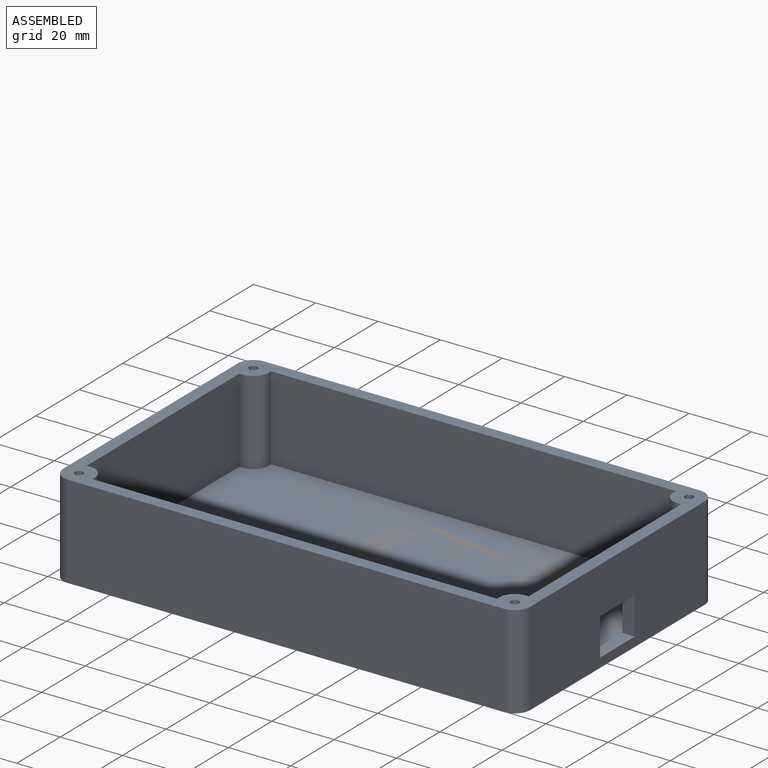
[diagram: assembled view]
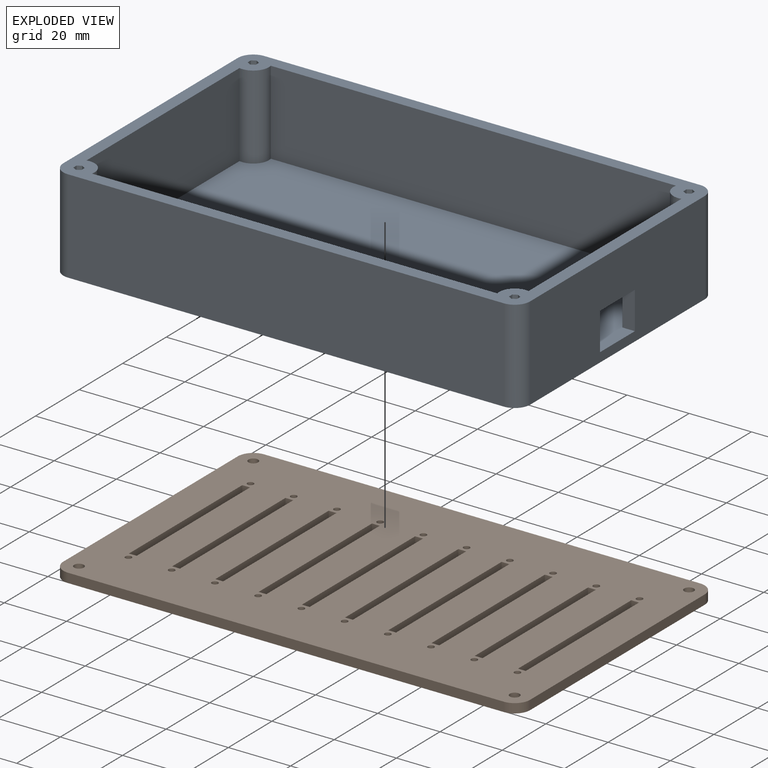
[diagram: exploded view]
GUIDED TOUR — FREECAD ASSEMBLY "mixer"

This assembly has 2 components, labeled P0..P1 below (a component is one placed body or linked part; the same part can appear more than once), held together by 0 modeled joints plus 1 derived contact edge. A joint is a constraint between two components; its type names the relative motion it leaves free:
  CONTACT — a derived adjacency edge — the two components touch in the source model (clearance under 2% of the assembly's diagonal); it is measured from the geometry, not a modeled constraint.
Axis/direction vectors are unit vectors and 'through' points are millimeter coordinates, both in the assembly's world frame.

MATES
  1. CONTACT "contact_0_1": P0 <-> P1, contact direction (0.000, 0.000, -1.000) through (-75.00, -40.00, 3.00) mm (derived from contact, not a modeled constraint)

ASSEMBLY ORDER
  1. P1 — the base component [order verified]
  2. P0 [order verified]
Order-tag legend:
  [order verified] — this step's position reverses a verified removal order: the component was checked to insert without passing through the ones already placed.

Of the 2 components, 2 carry a construction recipe — the FreeCAD feature program (sketches with constraints, then the solid features that consume them) that regenerates the part from scratch, quoted from this document or from the linked companion document it references; the rest are supplied as boundary geometry only. The tour below walks the components in assembly order: each is shown spotlighted twice — in the assembled view, then in the exploded view, where a leader line traces a displaced component back to its assembled socket (components that stay in place when exploded have no leader line; saturated green if recipe-attached, orange if geometry-only; every other component desaturated gray) — followed by its recipe or geometry summary and the mates that hold it.
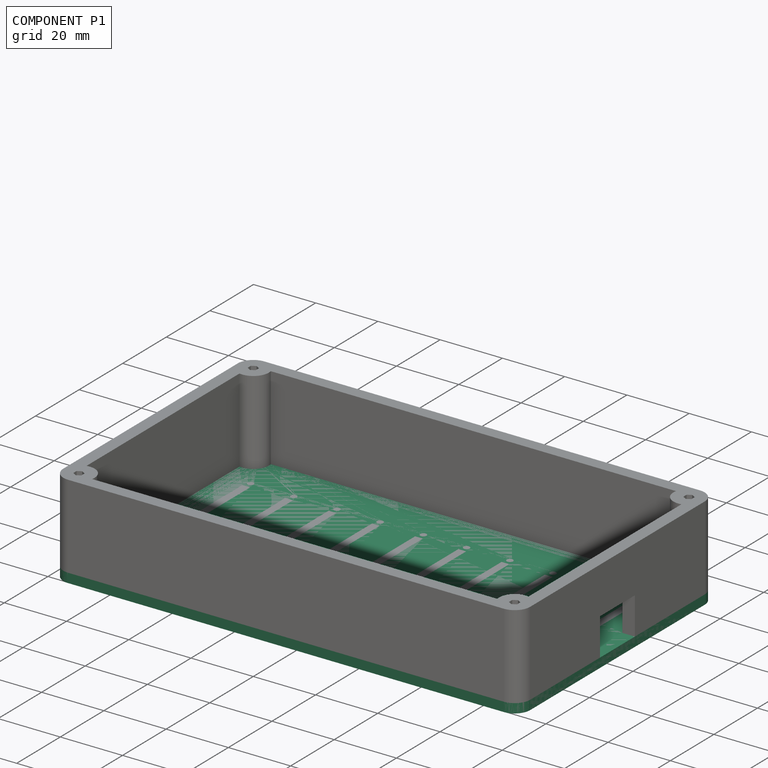
[diagram: component P1 — assembled]
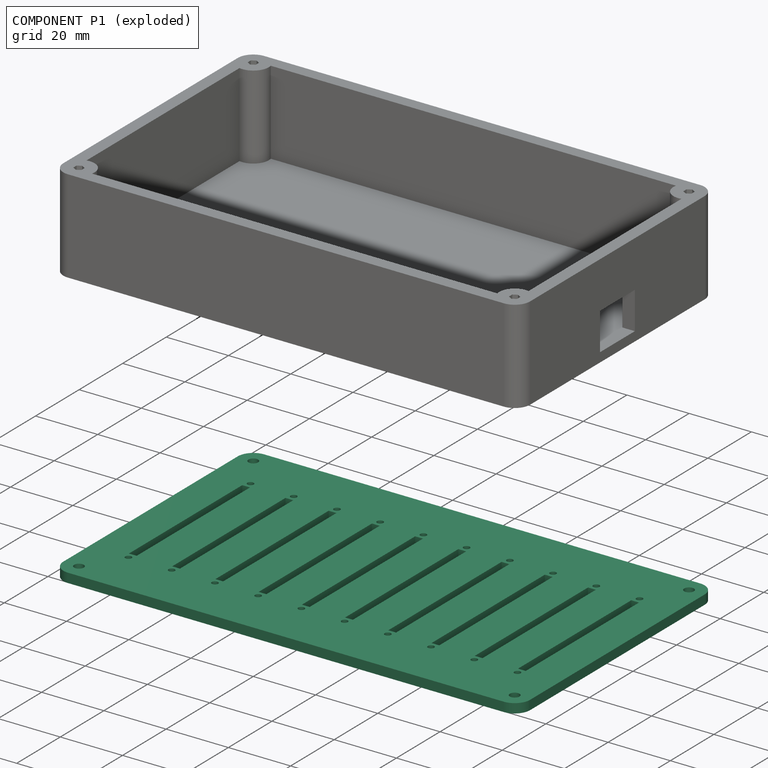
[diagram: component P1 — exploded]
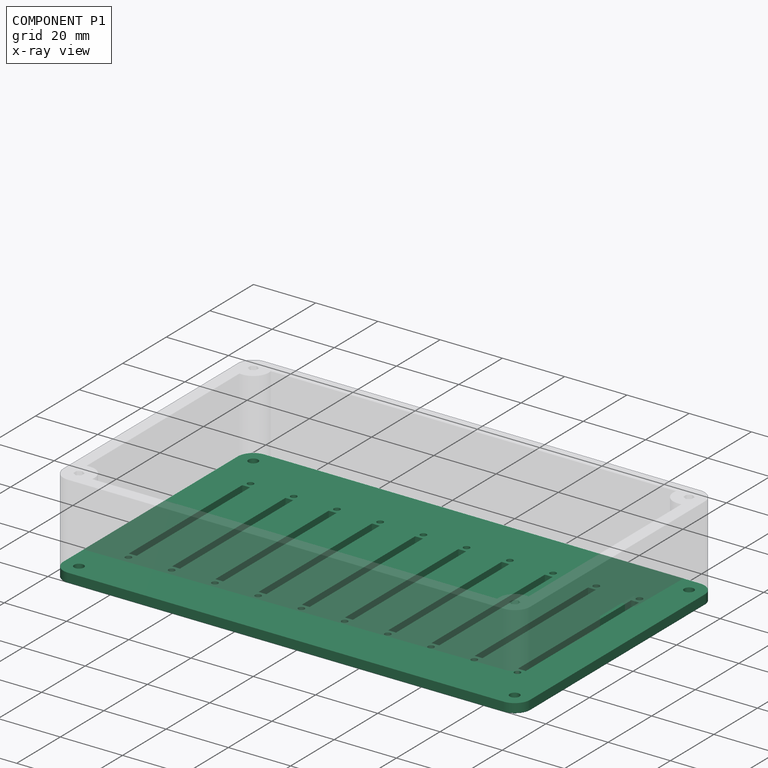
[diagram: component P1 — x-ray view]
COMPONENT P1 — recipe-attached ("TopPanel", modeled in this document).
Held by: resting contact with P0 (derived edge).
Construction recipe (the document's own serialized feature program — sketch geometry with constraints, then the solid features built on it; lengths are millimeters unless a unit is written):

FEATURE [PartDesign::CoordinateSystem] LCS_0  label="TopPanel_LCS"
  AttacherType = Attacher::AttachEngine3D
  MapMode = 2
  Support = -> [X_Axis001]
FEATURE [Sketcher::SketchObject] Sketch  label="TopPanel_Panel_S"
  FullyConstrained = true
  MapMode = 5
  Support = -> [XY_Plane001]
  sketch-geometry (8):
    g0: LineSegment StartX=-70 StartY=45 StartZ=0 EndX=70 EndY=45 EndZ=0
    g1: LineSegment StartX=75 StartY=40 StartZ=0 EndX=75 EndY=-40 EndZ=0
    g2: LineSegment StartX=70 StartY=-45 StartZ=0 EndX=-70 EndY=-45 EndZ=0
    g3: LineSegment StartX=-75 StartY=-40 StartZ=0 EndX=-75 EndY=40 EndZ=0
    g4: ArcOfCircle CenterX=-70 CenterY=40 CenterZ=0 NormalX=0 NormalY=0 NormalZ=1 AngleXU=0 Radius=5 StartAngle=1.5708 EndAngle=3.14159
    g5: ArcOfCircle CenterX=-70 CenterY=-40 CenterZ=0 NormalX=0 NormalY=0 NormalZ=1 AngleXU=0 Radius=5 StartAngle=3.14159 EndAngle=4.71239
    g6: ArcOfCircle CenterX=70 CenterY=-40 CenterZ=0 NormalX=0 NormalY=0 NormalZ=1 AngleXU=0 Radius=5 StartAngle=4.71239 EndAngle=6.28319
    g7: ArcOfCircle CenterX=70 CenterY=40 CenterZ=0 NormalX=0 NormalY=0 NormalZ=1 AngleXU=0 Radius=5 StartAngle=0 EndAngle=1.5708
  constraints (18):
    c: Horizontal(g2)
    c: Tangent(g0,g4) = 1.5708
    c: Tangent(g3,g4) = 1.5708
    c: Tangent(g3,g5) = 1.5708
    c: Tangent(g2,g5) = 1.5708
    c: Tangent(g1,g6) = 1.5708
    c: Tangent(g2,g6) = 1.5708
    c: Tangent(g0,g7) = 1.5708
    c: Tangent(g1,g7) = 1.5708
    c: Equal(g4,g5)
    c: Equal(g5,g7)
    c: Equal(g7,g6)
    c: Horizontal(g0)
    c: Radius(g4) = 5  'corner_radius'
    c: Symmetric(g3,g3,g-1)
    c: Symmetric(g3,g1,g-2)
    c: DistanceY(g2,g0) = 90  'depth'
    c: DistanceX(g3,g1) = 150  'width'
FEATURE [PartDesign::Pad] Pad  label="TopPanel_Panel"
  Direction = (1,1,1)
  Length = 3
  Length2 = 100
  Profile = -> Sketch
  Type = 0
FEATURE [Sketcher::SketchObject] Sketch002  label="TopPanel_FaderCutouts_S"
  AttachmentOffset = pos=(-62.5,0,0) rot=(0,0,1;0rad)
  FullyConstrained = true
  MapMode = 5
  Placement = pos=(-62.5,0,0) rot=(0,0,1;0rad)
  Support = -> [XY_Plane001]
  expr: .AttachmentOffset.Base.x = -<<Dimensions>>.fader_span / 2
  sketch-geometry (8):
    g0: LineSegment StartX=-1.25 StartY=26 StartZ=0 EndX=1.25 EndY=26 EndZ=0
    g1: LineSegment StartX=1.25 StartY=26 StartZ=0 EndX=1.25 EndY=-26 EndZ=0
    g2: LineSegment StartX=1.25 StartY=-26 StartZ=0 EndX=-1.25 EndY=-26 EndZ=0
    g3: LineSegment StartX=-1.25 StartY=-26 StartZ=0 EndX=-1.25 EndY=26 EndZ=0
    g4: Circle CenterX=0 CenterY=28 CenterZ=0 NormalX=0 NormalY=0 NormalZ=1 AngleXU=0 Radius=1
    g5: Circle CenterX=-1e-16 CenterY=-28 CenterZ=0 NormalX=0 NormalY=0 NormalZ=1 AngleXU=0 Radius=1
    g6: LineSegment StartX=0 StartY=28 StartZ=0 EndX=0 EndY=26 EndZ=0
    g7: LineSegment StartX=-1e-16 StartY=-28 StartZ=0 EndX=-1e-16 EndY=-26 EndZ=0
  constraints (20):
    c: Coincident(g0,g1)
    c: Coincident(g1,g2)
    c: Coincident(g2,g3)
    c: Coincident(g3,g0)
    c: Horizontal(g2)
    c: Vertical(g1)
    c: Equal(g4,g5)
    c: DistanceX(g0,g0) = 2.5  'cutout_width'
    c: DistanceY(g1,g1) = 52  'cutout_height'
    c: Diameter(g4) = 2  'mounting_hole_diameter'
    c: Vertical(g6)
    c: Vertical(g7)
    c: Coincident(g5,g7)
    c: Coincident(g4,g6)
    c: Symmetric(g0,g0,g6)
    c: Symmetric(g2,g1,g7)
    c: Equal(g6,g7)
    c: DistanceY(g6,g6) = 2  'mounting_hole_offset'
    c: Symmetric(g0,g2,g-1)
    c: Symmetric(g0,g0,g-2)
FEATURE [PartDesign::Pocket] Pocket  label="TopPanel_FaderCutout"
  BaseFeature = -> Pad
  Length = 0
  Length2 = 100
  Profile = -> Sketch002
  Reversed = true
  Type = 1
FEATURE [PartDesign::LinearPattern] LinearPattern  label="TopPanel_FaderCutouts"
  BaseFeature = -> Pocket
  Direction = -> Sketch002 [H_Axis]
  Length = 125
  Occurrences = 10
  Originals = -> [Pocket]
  expr: Length = <<Dimensions>>.fader_span
FEATURE [Sketcher::SketchObject] Sketch003  label="TopPanel_MountingHoles_S"
  FullyConstrained = true
  MapMode = 5
  Support = -> [XY_Plane001]
  expr: .Constraints.centres_y = Sketch.Constraints.depth - 10mm
  expr: .Constraints.centres_x = Sketch.Constraints.width - 10mm
  sketch-geometry (7):
    g0: LineSegment StartX=-70 StartY=2e-16 StartZ=0 EndX=70 EndY=-1e-16 EndZ=0
    g1: LineSegment StartX=-70 StartY=40 StartZ=0 EndX=-70 EndY=-40 EndZ=0
    g2: LineSegment StartX=70 StartY=40 StartZ=0 EndX=70 EndY=-40 EndZ=0
    g3: Circle CenterX=-70 CenterY=40 CenterZ=0 NormalX=0 NormalY=0 NormalZ=1 AngleXU=0 Radius=1.55
    g4: Circle CenterX=-70 CenterY=-40 CenterZ=0 NormalX=0 NormalY=0 NormalZ=1 AngleXU=0 Radius=1.55
    g5: Circle CenterX=70 CenterY=40 CenterZ=0 NormalX=0 NormalY=0 NormalZ=1 AngleXU=0 Radius=1.55
    g6: Circle CenterX=70 CenterY=-40 CenterZ=0 NormalX=0 NormalY=0 NormalZ=1 AngleXU=0 Radius=1.55
  constraints (17):
    c: Vertical(g1)
    c: Vertical(g2)
    c: Symmetric(g1,g1,g0)
    c: Symmetric(g2,g2,g0)
    c: DistanceX(g0,g0) = 140  'centres_x'
    c: Equal(g1,g2)
    c: DistanceY(g2,g2) = 80  'centres_y'
    c: Symmetric(g0,g0,g-2)
    c: PointOnObject(g-1,g0)
    c: Diameter(g3) = 3.1
    c: Equal(g3,g4)
    c: Equal(g4,g5)
    c: Equal(g5,g6)
    c: Coincident(g3,g1)
    c: Coincident(g4,g1)
    c: Coincident(g2,g5)
    c: Coincident(g2,g6)
FEATURE [PartDesign::Pocket] Pocket001  label="TopPanel_MoutingHoles"
  BaseFeature = -> LinearPattern
  Length = 0
  Length2 = 100
  Profile = -> Sketch003
  Reversed = true
  Type = 1
FEATURE [PartDesign::Body] TopPanel
  Group = -> [LCS_0,Sketch,Pad,Sketch002,Pocket,LinearPattern,Sketch003,Pocket001]
  Origin = -> Origin001
  Tip = -> Pocket001
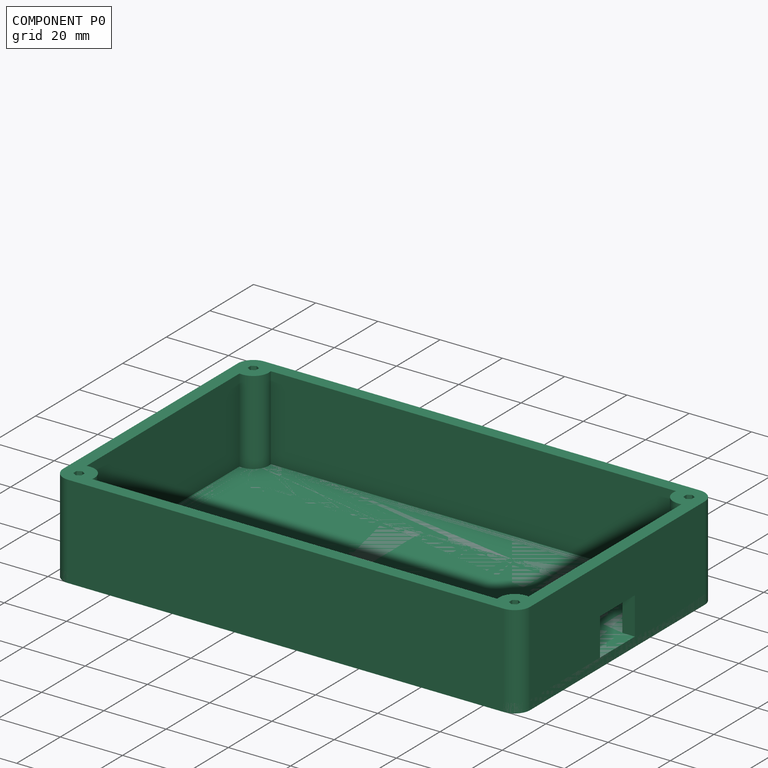
[diagram: component P0 — assembled]
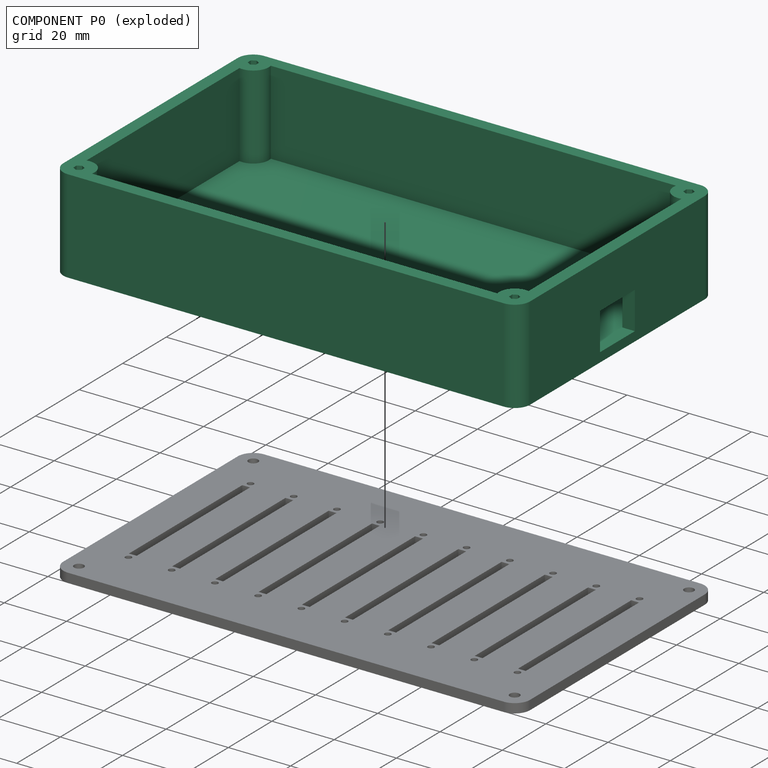
[diagram: component P0 — exploded]
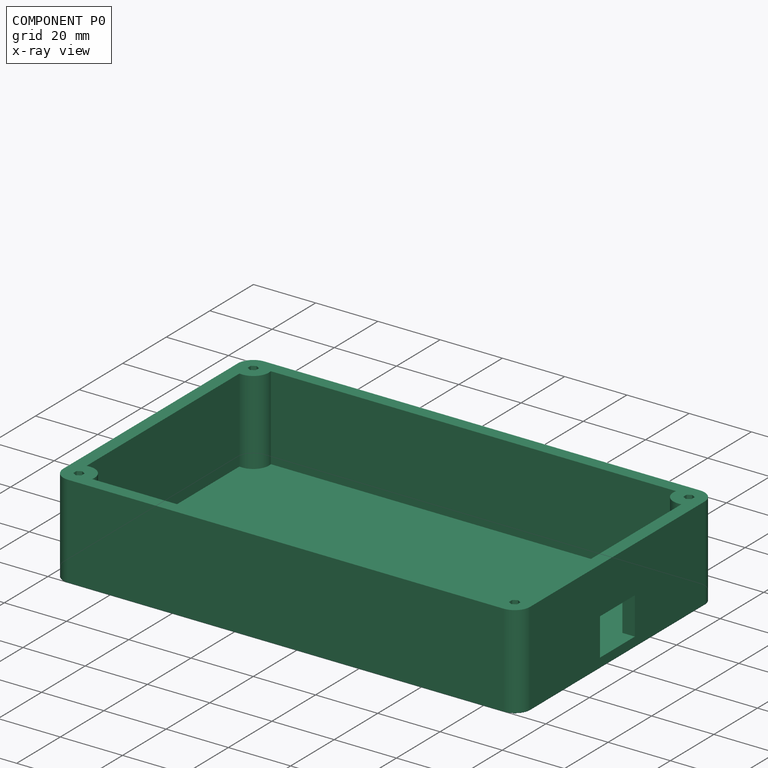
[diagram: component P0 — x-ray view]
COMPONENT P0 — recipe-attached ("Case", modeled in this document).
Held by: resting contact with P1 (derived edge).
Construction recipe (the document's own serialized feature program — sketch geometry with constraints, then the solid features built on it; lengths are millimeters unless a unit is written):

FEATURE [PartDesign::CoordinateSystem] LCS_0001  label="Case_LCS"
  AttacherType = Attacher::AttachEngine3D
  MapMode = 2
  Support = -> [X_Axis002]
FEATURE [Sketcher::SketchObject] Sketch004  label="Case_Body_S"
  FullyConstrained = true
  MapMode = 5
  Support = -> [XY_Plane002]
  expr: Constraints[13] = Sketch.Constraints.corner_radius
  expr: .Constraints.depth = Sketch.Constraints[16]
  expr: .Constraints.width = Sketch.Constraints[17]
  sketch-geometry (8):
    g0: LineSegment StartX=-70 StartY=45 StartZ=0 EndX=70 EndY=45 EndZ=0
    g1: LineSegment StartX=75 StartY=40 StartZ=0 EndX=75 EndY=-40 EndZ=0
    g2: LineSegment StartX=70 StartY=-45 StartZ=0 EndX=-70 EndY=-45 EndZ=0
    g3: LineSegment StartX=-75 StartY=-40 StartZ=0 EndX=-75 EndY=40 EndZ=0
    g4: ArcOfCircle CenterX=-70 CenterY=40 CenterZ=0 NormalX=0 NormalY=0 NormalZ=1 AngleXU=0 Radius=5 StartAngle=1.5708 EndAngle=3.14159
    g5: ArcOfCircle CenterX=-70 CenterY=-40 CenterZ=0 NormalX=0 NormalY=0 NormalZ=1 AngleXU=0 Radius=5 StartAngle=3.14159 EndAngle=4.71239
    g6: ArcOfCircle CenterX=70 CenterY=-40 CenterZ=0 NormalX=0 NormalY=0 NormalZ=1 AngleXU=0 Radius=5 StartAngle=4.71239 EndAngle=6.28319
    g7: ArcOfCircle CenterX=70 CenterY=40 CenterZ=0 NormalX=0 NormalY=0 NormalZ=1 AngleXU=0 Radius=5 StartAngle=8e-16 EndAngle=1.5708
  constraints (18):
    c: Horizontal(g2)
    c: Tangent(g0,g4) = 1.5708
    c: Tangent(g3,g4) = 1.5708
    c: Tangent(g3,g5) = 1.5708
    c: Tangent(g2,g5) = 1.5708
    c: Tangent(g1,g6) = 1.5708
    c: Tangent(g2,g6) = 1.5708
    c: Tangent(g0,g7) = 1.5708
    c: Tangent(g1,g7) = 1.5708
    c: Equal(g4,g5)
    c: Equal(g5,g7)
    c: Equal(g7,g6)
    c: Horizontal(g0)
    c: Radius(g4) = 5
    c: Symmetric(g3,g3,g-1)
    c: Symmetric(g3,g1,g-2)
    c: DistanceY(g2,g0) = 90  'depth'
    c: DistanceX(g3,g1) = 150  'width'
FEATURE [PartDesign::Pad] Pad001  label="Case_Body"
  Direction = (1,1,1)
  Length = 30
  Length2 = 100
  Profile = -> Sketch004
  Type = 0
FEATURE [PartDesign::Plane] DatumPlane001  label="Case_BottomWall"
  AttachmentOffset = pos=(0,0,3) rot=(0,0,1;0rad)
  Length = 173.238
  MapMode = 5
  Placement = pos=(0,0,3) rot=(0,0,1;0rad)
  ResizeMode = 0
  Support = -> [XY_Plane002]
  Width = 113.238
FEATURE [Sketcher::SketchObject] Sketch005  label="Case_Internal_S"
  FullyConstrained = true
  MapMode = 5
  Placement = pos=(0,0,3) rot=(0,0,1;0rad)
  Support = -> [DatumPlane001]
  expr: .Constraints.width = <<TopPanel_Panel_S>>.Constraints.width - 8mm
  expr: .Constraints.depth = <<TopPanel_Panel_S>>.Constraints.depth - 8mm
  sketch-geometry (4):
    g0: LineSegment StartX=-71 StartY=41 StartZ=0 EndX=71 EndY=41 EndZ=0
    g1: LineSegment StartX=71 StartY=41 StartZ=0 EndX=71 EndY=-41 EndZ=0
    g2: LineSegment StartX=71 StartY=-41 StartZ=0 EndX=-71 EndY=-41 EndZ=0
    g3: LineSegment StartX=-71 StartY=-41 StartZ=0 EndX=-71 EndY=41 EndZ=0
  constraints (10):
    c: Coincident(g0,g1)
    c: Coincident(g1,g2)
    c: Coincident(g2,g3)
    c: Coincident(g3,g0)
    c: Horizontal(g2)
    c: Vertical(g1)
    c: Symmetric(g0,g0,g-2)
    c: Symmetric(g0,g2,g-1)
    c: DistanceX(g0,g0) = 142  'width'
    c: DistanceY(g1,g1) = 82  'depth'
FEATURE [PartDesign::Pocket] Pocket002  label="Case_Internal"
  BaseFeature = -> Pad001
  Length = 0
  Length2 = 100
  Profile = -> Sketch005
  Reversed = true
  Type = 1
FEATURE [Sketcher::SketchObject] Sketch006  label="Case_MountingHoleSupports_S"
  FullyConstrained = true
  MapMode = 5
  Placement = pos=(0,0,3) rot=(0,0,1;0rad)
  Support = -> [DatumPlane001]
  expr: .Constraints.centres_y = Sketch003.Constraints[6]
  expr: .Constraints.centres_x = Sketch003.Constraints[4]
  sketch-geometry (7):
    g0: LineSegment StartX=-70 StartY=1e-16 StartZ=0 EndX=70 EndY=0 EndZ=0
    g1: LineSegment StartX=-70 StartY=40 StartZ=0 EndX=-70 EndY=-40 EndZ=0
    g2: LineSegment StartX=70 StartY=40 StartZ=0 EndX=70 EndY=-40 EndZ=0
    g3: Circle CenterX=-70 CenterY=40 CenterZ=0 NormalX=0 NormalY=0 NormalZ=1 AngleXU=0 Radius=5
    g4: Circle CenterX=70 CenterY=40 CenterZ=0 NormalX=0 NormalY=0 NormalZ=1 AngleXU=0 Radius=5
    g5: Circle CenterX=70 CenterY=-40 CenterZ=0 NormalX=0 NormalY=0 NormalZ=1 AngleXU=0 Radius=5
    g6: Circle CenterX=-70 CenterY=-40 CenterZ=0 NormalX=0 NormalY=0 NormalZ=1 AngleXU=0 Radius=5
  constraints (17):
    c: Vertical(g1)
    c: Vertical(g2)
    c: Symmetric(g1,g1,g0)
    c: Symmetric(g2,g2,g0)
    c: DistanceX(g0,g0) = 140  'centres_x'
    c: Equal(g1,g2)
    c: DistanceY(g2,g2) = 80  'centres_y'
    c: Symmetric(g0,g0,g-2)
    c: PointOnObject(g-1,g0)
    c: Diameter(g3) = 10  'padding'
    c: Equal(g3,g4)
    c: Equal(g4,g5)
    c: Equal(g5,g6)
    c: Coincident(g3,g1)
    c: Coincident(g4,g2)
    c: Coincident(g2,g5)
    c: Coincident(g1,g6)
FEATURE [PartDesign::Plane] DatumPlane  label="Case_PanelFace"
  AttachmentOffset = pos=(0,0,30) rot=(0,0,1;0rad)
  Length = 173.238
  MapMode = 5
  Placement = pos=(0,0,30) rot=(0,0,1;0rad)
  ResizeMode = 0
  Support = -> [XY_Plane002]
  Width = 113.238
  expr: .AttachmentOffset.Base.z = <<Case_Body>>.Length
FEATURE [PartDesign::Pad] Pad002  label="Case_MountingHoleSupports"
  BaseFeature = -> Pocket002
  Direction = (1,1,1)
  Length = 10
  Length2 = 100
  Profile = -> Sketch006
  Type = 3
  UpToFace = -> DatumPlane [Plane]
FEATURE [Sketcher::SketchObject] Sketch007  label="Case_PanelMountingHoles_S"
  FullyConstrained = true
  MapMode = 5
  Placement = pos=(0,0,30) rot=(0,0,1;0rad)
  Support = -> [DatumPlane]
  expr: .Constraints.centres_y = Sketch003.Constraints[6]
  expr: .Constraints.centres_x = Sketch003.Constraints[4]
  sketch-geometry (31):
    g0: LineSegment StartX=-70 StartY=0 StartZ=0 EndX=70 EndY=0 EndZ=0
    g1: LineSegment StartX=-70 StartY=40 StartZ=0 EndX=-70 EndY=-40 EndZ=0
    g2: LineSegment StartX=70 StartY=40 StartZ=0 EndX=70 EndY=-40 EndZ=0
    g3: LineSegment StartX=-70 StartY=38.5 StartZ=0 EndX=-68.701 EndY=39.25 EndZ=0
    g4: LineSegment StartX=-68.701 StartY=39.25 StartZ=0 EndX=-68.701 EndY=40.75 EndZ=0
    g5: LineSegment StartX=-68.701 StartY=40.75 StartZ=0 EndX=-70 EndY=41.5 EndZ=0
    g6: LineSegment StartX=-70 StartY=41.5 StartZ=0 EndX=-71.299 EndY=40.75 EndZ=0
    g7: LineSegment StartX=-71.299 StartY=40.75 StartZ=0 EndX=-71.299 EndY=39.25 EndZ=0
    g8: LineSegment StartX=-71.299 StartY=39.25 StartZ=0 EndX=-70 EndY=38.5 EndZ=0
    g9: Circle CenterX=-70 CenterY=40 CenterZ=0 NormalX=0 NormalY=0 NormalZ=1 AngleXU=0 Radius=1.5
    g10: LineSegment StartX=-68.701 StartY=-40.75 StartZ=0 EndX=-68.701 EndY=-39.25 EndZ=0
    g11: LineSegment StartX=-68.701 StartY=-39.25 StartZ=0 EndX=-70 EndY=-38.5 EndZ=0
    g12: LineSegment StartX=-70 StartY=-38.5 StartZ=0 EndX=-71.299 EndY=-39.25 EndZ=0
    g13: LineSegment StartX=-71.299 StartY=-39.25 StartZ=0 EndX=-71.299 EndY=-40.75 EndZ=0
    g14: LineSegment StartX=-71.299 StartY=-40.75 StartZ=0 EndX=-70 EndY=-41.5 EndZ=0
    g15: LineSegment StartX=-70 StartY=-41.5 StartZ=0 EndX=-68.701 EndY=-40.75 EndZ=0
    g16: Circle CenterX=-70 CenterY=-40 CenterZ=0 NormalX=0 NormalY=0 NormalZ=1 AngleXU=0 Radius=1.5
    g17: LineSegment StartX=71.299 StartY=40.75 StartZ=0 EndX=70 EndY=41.5 EndZ=0
    g18: LineSegment StartX=70 StartY=41.5 StartZ=0 EndX=68.701 EndY=40.75 EndZ=0
    g19: LineSegment StartX=68.701 StartY=40.75 StartZ=0 EndX=68.701 EndY=39.25 EndZ=0
    g20: LineSegment StartX=68.701 StartY=39.25 StartZ=0 EndX=70 EndY=38.5 EndZ=0
    g21: LineSegment StartX=70 StartY=38.5 StartZ=0 EndX=71.299 EndY=39.25 EndZ=0
    g22: LineSegment StartX=71.299 StartY=39.25 StartZ=0 EndX=71.299 EndY=40.75 EndZ=0
    g23: Circle CenterX=70 CenterY=40 CenterZ=0 NormalX=0 NormalY=0 NormalZ=1 AngleXU=0 Radius=1.5
    g24: LineSegment StartX=71.299 StartY=-40.75 StartZ=0 EndX=71.299 EndY=-39.25 EndZ=0
    g25: LineSegment StartX=71.299 StartY=-39.25 StartZ=0 EndX=70 EndY=-38.5 EndZ=0
    g26: LineSegment StartX=70 StartY=-38.5 StartZ=0 EndX=68.701 EndY=-39.25 EndZ=0
    g27: LineSegment StartX=68.701 StartY=-39.25 StartZ=0 EndX=68.701 EndY=-40.75 EndZ=0
    g28: LineSegment StartX=68.701 StartY=-40.75 StartZ=0 EndX=70 EndY=-41.5 EndZ=0
    g29: LineSegment StartX=70 StartY=-41.5 StartZ=0 EndX=71.299 EndY=-40.75 EndZ=0
    g30: Circle CenterX=70 CenterY=-40 CenterZ=0 NormalX=0 NormalY=0 NormalZ=1 AngleXU=0 Radius=1.5
  constraints (73):
    c: Vertical(g1)
    c: Vertical(g2)
    c: Symmetric(g1,g1,g0)
    c: Symmetric(g2,g2,g0)
    c: DistanceX(g0,g0) = 140  'centres_x'
    c: Equal(g1,g2)
    c: DistanceY(g2,g2) = 80  'centres_y'
    c: Symmetric(g0,g0,g-2)
    c: PointOnObject(g-1,g0)
    c: Coincident(g3,g4)
    c: Coincident(g4,g5)
    c: Coincident(g5,g6)
    c: Coincident(g6,g7)
    c: Coincident(g7,g8)
    c: Coincident(g8,g3)
    c: Equal(g3, g4-g8) x5
    c: PointOnObject(g3,g9)
    c: PointOnObject(g4,g9)
    c: PointOnObject(g5,g9)
    c: PointOnObject(g6,g9)
    c: PointOnObject(g7,g9)
    c: PointOnObject(g8,g9)
    c: Coincident(g10,g11)
    c: Coincident(g11,g12)
    c: Coincident(g12,g13)
    c: Coincident(g13,g14)
    c: Coincident(g14,g15)
    c: Coincident(g15,g10)
    c: Equal(g10, g11-g15) x5
    c: PointOnObject(g10,g16)
    c: PointOnObject(g11,g16)
    c: PointOnObject(g12,g16)
    c: PointOnObject(g13,g16)
    c: PointOnObject(g14,g16)
    c: PointOnObject(g15,g16)
    c: Coincident(g1,g9)
    c: Coincident(g16,g1)
    c: Equal(g9,g16)
    c: Diameter(g9) = 3
    c: PointOnObject(g3,g1)
    c: PointOnObject(g11,g1)
    c: Coincident(g17,g18)
    c: Coincident(g18,g19)
    c: Coincident(g19,g20)
    c: Coincident(g20,g21)
    c: Coincident(g21,g22)
    c: Coincident(g22,g17)
    c: Equal(g17, g18-g22) x5
    c: PointOnObject(g17,g23)
    c: PointOnObject(g18,g23)
    c: PointOnObject(g19,g23)
    c: PointOnObject(g20,g23)
    c: PointOnObject(g21,g23)
    c: PointOnObject(g22,g23)
    c: Coincident(g23,g2)
    c: Coincident(g24,g25)
    c: Coincident(g25,g26)
    c: Coincident(g26,g27)
    c: Coincident(g27,g28)
    c: Coincident(g28,g29)
    c: Coincident(g29,g24)
    c: Equal(g24, g25-g29) x5
    c: PointOnObject(g24,g30)
    c: PointOnObject(g25,g30)
    c: PointOnObject(g26,g30)
    c: PointOnObject(g27,g30)
    c: PointOnObject(g28,g30)
    c: PointOnObject(g29,g30)
    c: Coincident(g30,g2)
    c: PointOnObject(g25,g2)
    c: PointOnObject(g20,g2)
    c: Equal(g16,g23)
    c: Equal(g23,g30)
FEATURE [PartDesign::Pocket] Pocket003  label="Case_PanelMountingHoles"
  BaseFeature = -> Pad002
  Length = 15
  Length2 = 100
  Profile = -> Sketch007
  Type = 0
FEATURE [PartDesign::Point] DatumPoint  label="Case_CableCutout_Point"
  AttacherType = Attacher::AttachEnginePoint
  MapMode = 41
  Placement = pos=(71,0,3) rot=(0,0,1;0rad)
  Support = -> [X_Axis002,Pocket003]
FEATURE [Sketcher::SketchObject] Sketch008  label="Case_CableCutout_S"
  FullyConstrained = true
  MapMode = 6
  Placement = pos=(71,0,3) rot=(0.57735,-0.57735,-0.57735;2.0944rad)
  Support = -> [Pocket003,DatumPoint]
  sketch-geometry (4):
    g0: LineSegment StartX=-8 StartY=12 StartZ=0 EndX=8 EndY=12 EndZ=0
    g1: LineSegment StartX=8 StartY=12 StartZ=0 EndX=8 EndY=0 EndZ=0
    g2: LineSegment StartX=8 StartY=0 StartZ=0 EndX=-8 EndY=0 EndZ=0
    g3: LineSegment StartX=-8 StartY=0 StartZ=0 EndX=-8 EndY=12 EndZ=0
  constraints (11):
    c: Coincident(g0,g1)
    c: Coincident(g1,g2)
    c: Coincident(g2,g3)
    c: Coincident(g3,g0)
    c: Horizontal(g0)
    c: Vertical(g1)
    c: Vertical(g3)
    c: PointOnObject(g1,g-1)
    c: Symmetric(g2,g1,g-2)
    c: DistanceY(g1,g1) = 12  'height'
    c: DistanceX(g0,g0) = 16  'width'
FEATURE [PartDesign::Pocket] Pocket004  label="Case_CableCutout"
  BaseFeature = -> Pocket003
  Length = 0
  Length2 = 100
  Profile = -> Sketch008
  Type = 3
  UpToFace = -> Pocket003 [Face13]
FEATURE [PartDesign::Body] Case
  Group = -> [LCS_0001,Sketch004,Pad001,DatumPlane001,Sketch005,Pocket002,Sketch006,DatumPlane,Pad002,Sketch007,Pocket003,DatumPoint,Sketch008,Pocket004]
  Origin = -> Origin002
  Tip = -> Pocket004
PROVENANCE & LICENSES
Assembly and component geometry: a FreeCAD (.FCStd) document from a public repository crawl; components, placements and joints were extracted with FreeCAD and each solid tessellated.
Construction recipes: the document's own serialized feature recipes (and, for linked parts, the recipes of companion documents from the same project).
License: as declared in the source repository (recorded in the dataset sidecar).
Joints: native FreeCAD joints and A2plus constraints are mapped to standard mate types; edges marked 'derived from contact' connect touching components and are measured from the geometry, not modeled.
Verification: 2 of this assembly's 2 components carry a construction recipe (2 from this document itself); the rest are geometry-only. Every component's tessellation passed the extraction mesh gates (mesh-volume checksum against the B-rep where available, bounding-box inflation <= 2%).
Renders: orthographic iso camera (az 35 / el 25); the floor grid conveys scale (grid pitch printed in each image; no ruler). In the exploded view each component is displaced by its stored offset vector: the offsets alone carry the explosion direction (mate normal/axis signs are not orientation cues and do not encode it), and separation distances are assigned per mate-chain, not proportionally to assembly-order depth.
